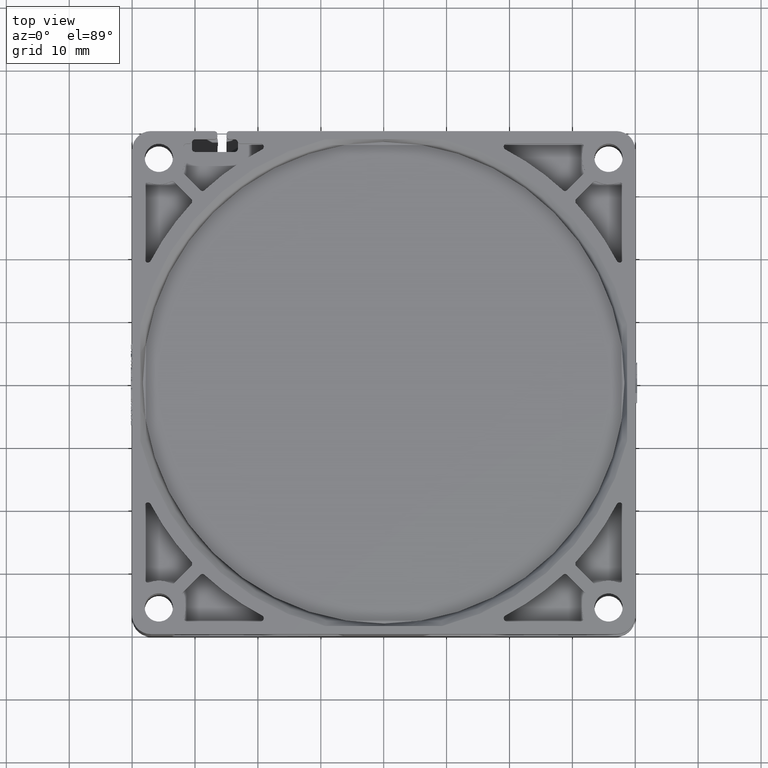
[diagram: clean part render]
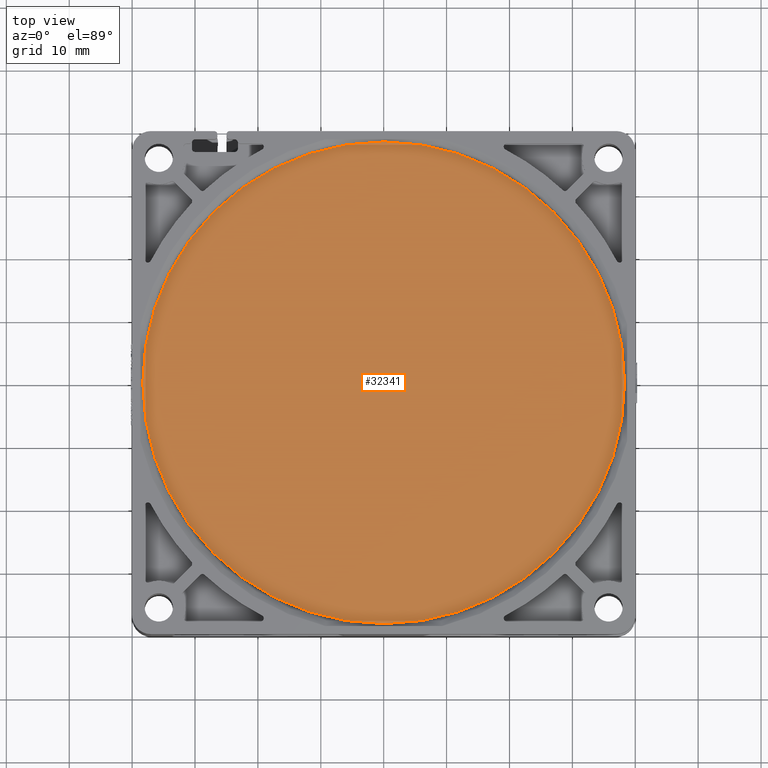
[diagram: same view with one face highlighted and labeled with its STEP entity id]
A machine part, top view. The second image highlights one B-rep face of the part: STEP entity #32341.
In plain terms, the highlighted planar face has unit normal (0, 0, 1).
Its self-contained STEP definition (entity closure, byte-faithful):
#462 = PLANE ( 'NONE',  #4066 ) ;
#3045 = CARTESIAN_POINT ( 'NONE',  ( 38.29999999999999700, 0.0000000000000000000, -1.100000000000000300 ) ) ;
#3988 = VERTEX_POINT ( 'NONE', #17750 ) ;
#4066 = AXIS2_PLACEMENT_3D ( 'NONE', #7039, #17965, #18105 ) ;
#4492 = CARTESIAN_POINT ( 'NONE',  ( 0.0000000000000000000, 0.0000000000000000000, -1.100000000000000300 ) ) ;
#6653 = AXIS2_PLACEMENT_3D ( 'NONE', #11504, #34591, #31370 ) ;
#7039 = CARTESIAN_POINT ( 'NONE',  ( 0.0000000000000000000, 0.0000000000000000000, -1.100000000000000300 ) ) ;
#10464 = EDGE_CURVE ( 'NONE', #3988, #20406, #20556, .T. ) ;
#10987 = ORIENTED_EDGE ( 'NONE', *, *, #18175, .T. ) ;
#11504 = CARTESIAN_POINT ( 'NONE',  ( 0.0000000000000000000, 0.0000000000000000000, -1.100000000000000300 ) ) ;
#14294 = AXIS2_PLACEMENT_3D ( 'NONE', #4492, #35700, #18543 ) ;
#15239 = FACE_OUTER_BOUND ( 'NONE', #28550, .T. ) ;
#17750 = CARTESIAN_POINT ( 'NONE',  ( -38.29999999999999700, 4.690397240734362000E-015, -1.100000000000000300 ) ) ;
#17965 = DIRECTION ( 'NONE',  ( 0.0000000000000000000, 0.0000000000000000000, 1.000000000000000000 ) ) ;
#18105 = DIRECTION ( 'NONE',  ( 1.000000000000000000, 0.0000000000000000000, -0.0000000000000000000 ) ) ;
#18175 = EDGE_CURVE ( 'NONE', #20406, #3988, #34534, .T. ) ;
#18543 = DIRECTION ( 'NONE',  ( 1.000000000000000000, 0.0000000000000000000, 0.0000000000000000000 ) ) ;
#20406 = VERTEX_POINT ( 'NONE', #3045 ) ;
#20556 = CIRCLE ( 'NONE', #14294, 38.29999999999999700 ) ;
#24388 = ORIENTED_EDGE ( 'NONE', *, *, #10464, .T. ) ;
#28550 = EDGE_LOOP ( 'NONE', ( #10987, #24388 ) ) ;
#31370 = DIRECTION ( 'NONE',  ( 1.000000000000000000, 0.0000000000000000000, 0.0000000000000000000 ) ) ;
#32341 = ADVANCED_FACE ( 'NONE', ( #15239 ), #462, .T. ) ;
#34534 = CIRCLE ( 'NONE', #6653, 38.29999999999999700 ) ;
#34591 = DIRECTION ( 'NONE',  ( 0.0000000000000000000, 0.0000000000000000000, 1.000000000000000000 ) ) ;
#35700 = DIRECTION ( 'NONE',  ( 0.0000000000000000000, 0.0000000000000000000, 1.000000000000000000 ) ) ;